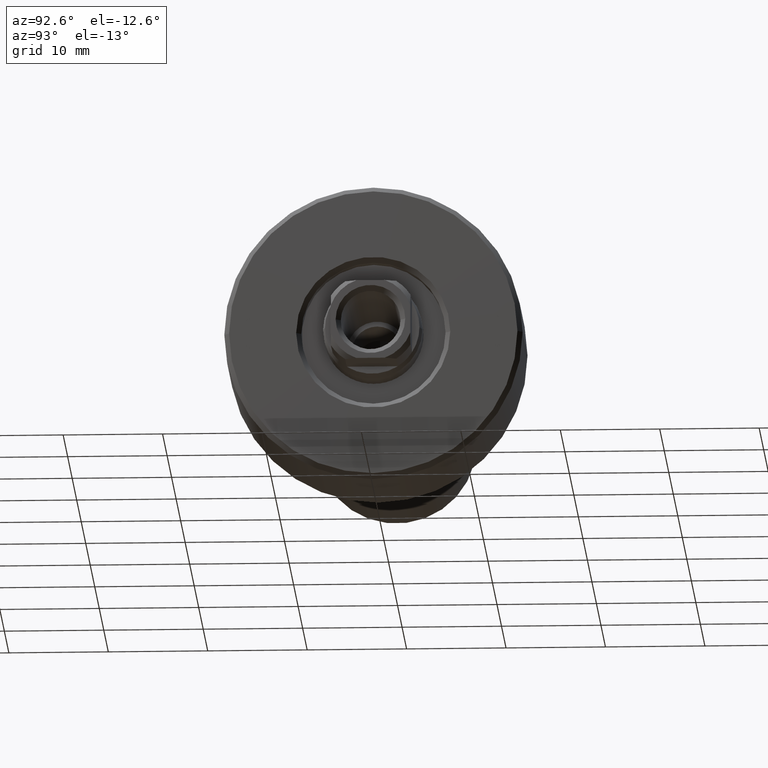
[diagram: clean part render]
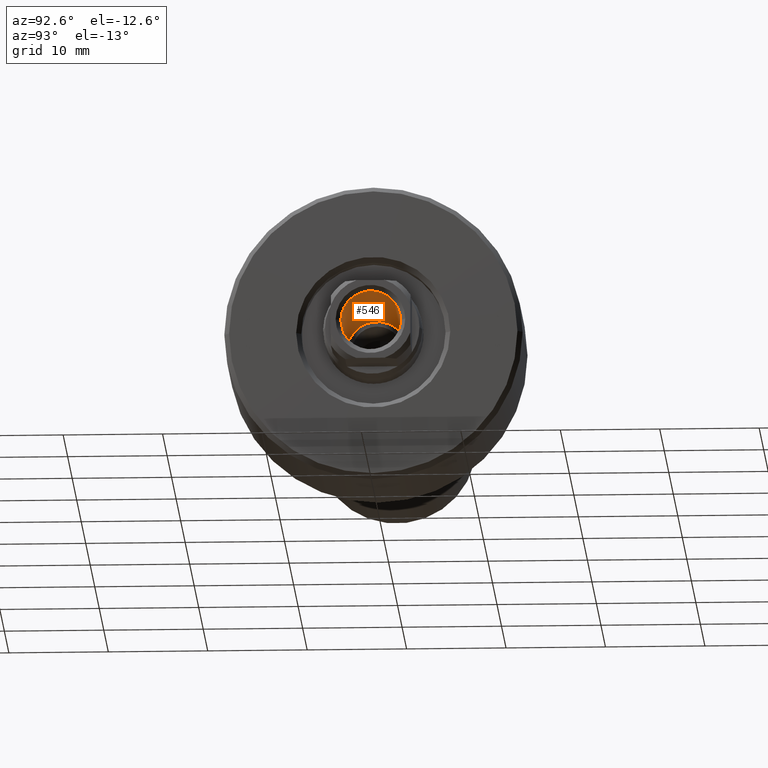
[diagram: same view with one face highlighted and labeled with its STEP entity id]
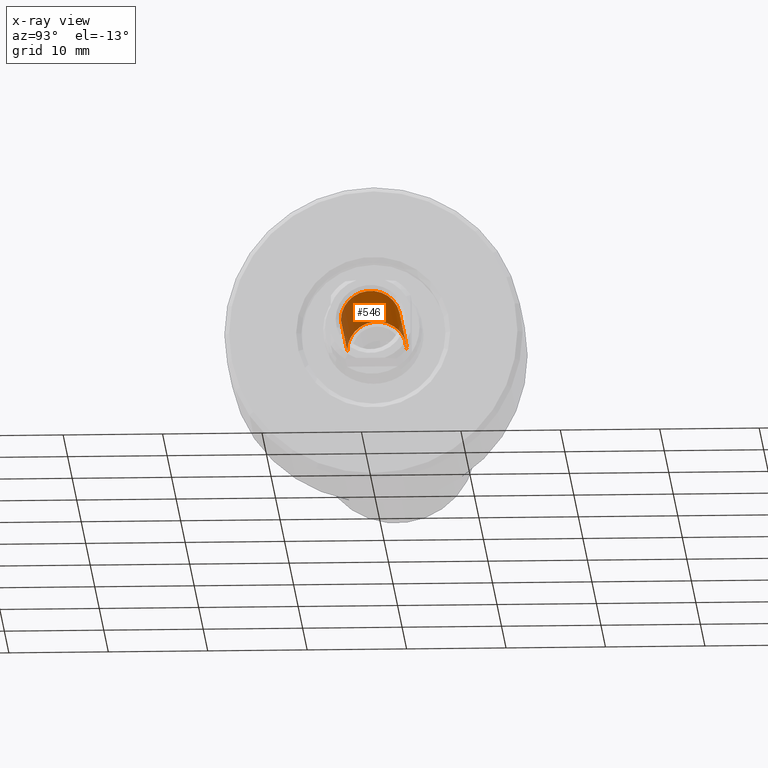
[diagram: x-ray of the same camera — body ghosted, the highlighted face saturated]
A machine part, auxiliary view. The second image highlights one B-rep face of the part: STEP entity #546.
The next image is the same camera in x-ray: the body ghosted, the highlighted face saturated — about 4% of this face is hidden behind the body in this view.
In plain terms, the highlighted cylindrical surface (edge-blend (fillet) strip) has radius 3 mm, axis along (1, -0, 0).
Its self-contained STEP definition (entity closure, byte-faithful):
#84 = ORIENTED_EDGE ( 'NONE', *, *, #1924, .F. ) ;
#95 = VERTEX_POINT ( 'NONE', #875 ) ;
#202 = CARTESIAN_POINT ( 'NONE',  ( 59.50000000000010658, 2.999999999999305000, 0.000000000000000000 ) ) ;
#331 = CIRCLE ( 'NONE', #1618, 3.000000000000290878 ) ;
#353 = EDGE_CURVE ( 'NONE', #1755, #1587, #1248, .T. ) ;
#433 = EDGE_CURVE ( 'NONE', #1755, #1034, #331, .T. ) ;
#546 = ADVANCED_FACE ( 'NONE', ( #2283 ), #1497, .F. ) ;
#775 = VECTOR ( 'NONE', #2096, 1000.000000000000000 ) ;
#789 = CARTESIAN_POINT ( 'NONE',  ( 45.29999999999994031, -3.000000000001041833, 3.673940397442415842E-16 ) ) ;
#875 = CARTESIAN_POINT ( 'NONE',  ( 59.50000000000001421, -3.000000000001276756, 3.673940397442559316E-16 ) ) ;
#1009 = EDGE_LOOP ( 'NONE', ( #84, #2060, #2289, #1366 ) ) ;
#1034 = VERTEX_POINT ( 'NONE', #1480 ) ;
#1232 = CARTESIAN_POINT ( 'NONE',  ( 59.50000000000005684, -9.860725556978780642E-13, 0.000000000000000000 ) ) ;
#1248 = LINE ( 'NONE', #1565, #1414 ) ;
#1277 = DIRECTION ( 'NONE',  ( 1.000000000000000000, -1.657264799492230625E-14, 0.000000000000000000 ) ) ;
#1327 = EDGE_CURVE ( 'NONE', #1587, #95, #1886, .T. ) ;
#1366 = ORIENTED_EDGE ( 'NONE', *, *, #1327, .T. ) ;
#1386 = DIRECTION ( 'NONE',  ( 1.000000000000000000, -1.657264799492212008E-14, 0.000000000000000000 ) ) ;
#1414 = VECTOR ( 'NONE', #1750, 1000.000000000000000 ) ;
#1452 = DIRECTION ( 'NONE',  ( 1.619075244244862919E-14, 1.000000000000000000, 0.000000000000000000 ) ) ;
#1480 = CARTESIAN_POINT ( 'NONE',  ( 45.29999999999994031, -3.000000000001041833, 3.673940397442415842E-16 ) ) ;
#1497 = CYLINDRICAL_SURFACE ( 'NONE', #1578, 3.000000000000290878 ) ;
#1565 = CARTESIAN_POINT ( 'NONE',  ( 45.30000000000003268, 2.999999999999540368, 0.000000000000000000 ) ) ;
#1578 = AXIS2_PLACEMENT_3D ( 'NONE', #1695, #2427, #1899 ) ;
#1587 = VERTEX_POINT ( 'NONE', #202 ) ;
#1618 = AXIS2_PLACEMENT_3D ( 'NONE', #2051, #1277, #1452 ) ;
#1695 = CARTESIAN_POINT ( 'NONE',  ( 45.29999999999998295, -7.507409541699801707E-13, 0.000000000000000000 ) ) ;
#1745 = LINE ( 'NONE', #789, #775 ) ;
#1750 = DIRECTION ( 'NONE',  ( 1.000000000000000000, -1.657264799492230625E-14, -0.000000000000000000 ) ) ;
#1755 = VERTEX_POINT ( 'NONE', #2023 ) ;
#1886 = CIRCLE ( 'NONE', #2316, 3.000000000000290878 ) ;
#1899 = DIRECTION ( 'NONE',  ( 1.619075244244862919E-14, 1.000000000000000000, 0.000000000000000000 ) ) ;
#1924 = EDGE_CURVE ( 'NONE', #1034, #95, #1745, .T. ) ;
#1971 = DIRECTION ( 'NONE',  ( -1.619075244244862919E-14, -1.000000000000000000, 0.000000000000000000 ) ) ;
#2023 = CARTESIAN_POINT ( 'NONE',  ( 45.30000000000003268, 2.999999999999540368, 0.000000000000000000 ) ) ;
#2051 = CARTESIAN_POINT ( 'NONE',  ( 45.29999999999998295, -7.507409541699801707E-13, 0.000000000000000000 ) ) ;
#2060 = ORIENTED_EDGE ( 'NONE', *, *, #433, .F. ) ;
#2096 = DIRECTION ( 'NONE',  ( 1.000000000000000000, -1.657264799492230625E-14, -0.000000000000000000 ) ) ;
#2283 = FACE_OUTER_BOUND ( 'NONE', #1009, .T. ) ;
#2289 = ORIENTED_EDGE ( 'NONE', *, *, #353, .T. ) ;
#2316 = AXIS2_PLACEMENT_3D ( 'NONE', #1232, #1386, #1971 ) ;
#2427 = DIRECTION ( 'NONE',  ( 1.000000000000000000, -1.657264799492230625E-14, -0.000000000000000000 ) ) ;